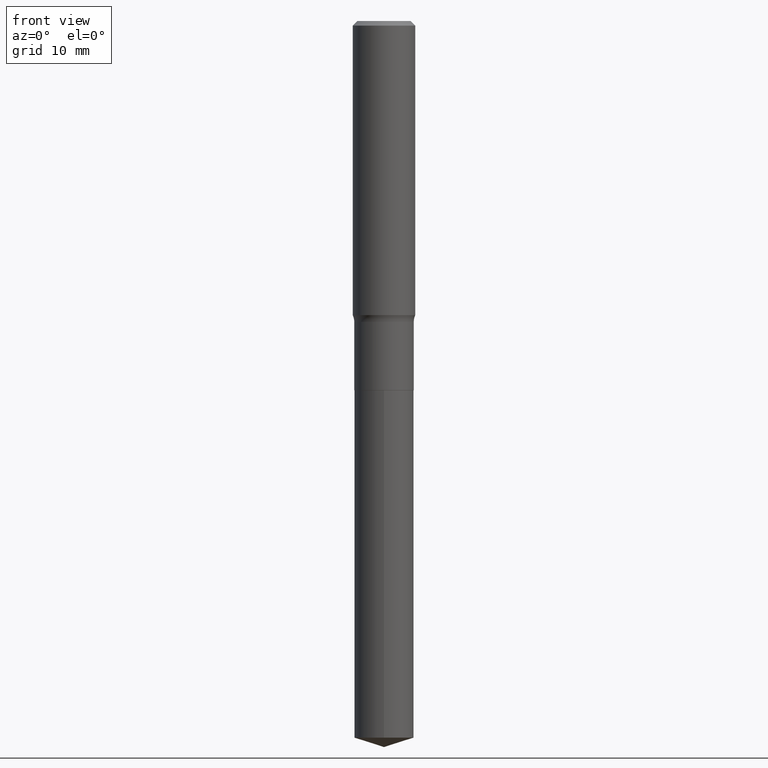
[diagram: clean part render]
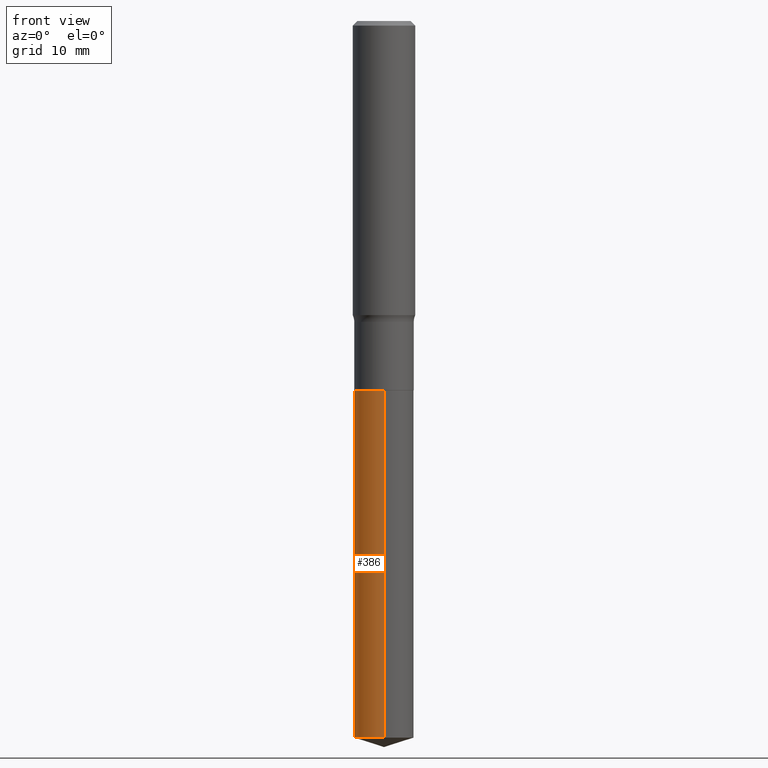
[diagram: same view with one face highlighted and labeled with its STEP entity id]
A machine part, front view. The second image highlights one B-rep face of the part: STEP entity #386.
In plain terms, the highlighted cylindrical surface (edge-blend (fillet) strip) has radius 3.7706 mm, axis along (-0, 0, 1).
Its self-contained STEP definition (entity closure, byte-faithful):
#6 = LINE ( 'NONE', #428, #115 ) ;
#23 = CYLINDRICAL_SURFACE ( 'NONE', #341, 0.1484499999999999986 ) ;
#25 = LINE ( 'NONE', #102, #387 ) ;
#62 = CARTESIAN_POINT ( 'NONE',  ( 1.054800691235956477E-15, 0.1484499999999935593, -1.843800000000000772 ) ) ;
#63 = VERTEX_POINT ( 'NONE', #317 ) ;
#66 = CIRCLE ( 'NONE', #334, 0.1484499999999999986 ) ;
#74 = DIRECTION ( 'NONE',  ( -2.445681550450447352E-29, 3.491176676946568981E-15, 1.000000000000000000 ) ) ;
#76 = ORIENTED_EDGE ( 'NONE', *, *, #112, .F. ) ;
#82 = DIRECTION ( 'NONE',  ( -2.445681550450447632E-29, 3.491176676946568981E-15, 1.000000000000000000 ) ) ;
#102 = CARTESIAN_POINT ( 'NONE',  ( -1.036620809502480931E-15, -0.1484500000000064379, -1.843799999999999661 ) ) ;
#103 = CARTESIAN_POINT ( 'NONE',  ( 4.508955384844155553E-29, -6.437593292558992940E-15, -1.843800000000000106 ) ) ;
#108 = EDGE_LOOP ( 'NONE', ( #313, #185, #195, #76 ) ) ;
#112 = EDGE_CURVE ( 'NONE', #352, #63, #300, .T. ) ;
#115 = VECTOR ( 'NONE', #82, 39.37007874015748143 ) ;
#138 = DIRECTION ( 'NONE',  ( -6.982962677686265133E-15, -1.000000000000000000, 3.680495781292372402E-15 ) ) ;
#162 = VERTEX_POINT ( 'NONE', #369 ) ;
#177 = DIRECTION ( 'NONE',  ( -6.982962677686265133E-15, -1.000000000000000000, 3.680495781292372402E-15 ) ) ;
#185 = ORIENTED_EDGE ( 'NONE', *, *, #469, .T. ) ;
#195 = ORIENTED_EDGE ( 'NONE', *, *, #277, .T. ) ;
#222 = VERTEX_POINT ( 'NONE', #434 ) ;
#275 = CARTESIAN_POINT ( 'NONE',  ( 8.750730534548190611E-29, -1.249266880669155655E-14, -3.578193894790915319 ) ) ;
#277 = EDGE_CURVE ( 'NONE', #162, #63, #25, .T. ) ;
#295 = DIRECTION ( 'NONE',  ( -2.445681550450447632E-29, 3.491176676946568981E-15, 1.000000000000000000 ) ) ;
#300 = CIRCLE ( 'NONE', #418, 0.1484499999999999986 ) ;
#313 = ORIENTED_EDGE ( 'NONE', *, *, #461, .F. ) ;
#317 = CARTESIAN_POINT ( 'NONE',  ( -1.036620809502480931E-15, -0.1484500000000064379, -1.843799999999999661 ) ) ;
#322 = CARTESIAN_POINT ( 'NONE',  ( 4.508955384844155553E-29, -6.437593292558992940E-15, -1.843800000000000106 ) ) ;
#334 = AXIS2_PLACEMENT_3D ( 'NONE', #275, #74, #388 ) ;
#341 = AXIS2_PLACEMENT_3D ( 'NONE', #103, #378, #177 ) ;
#352 = VERTEX_POINT ( 'NONE', #62 ) ;
#369 = CARTESIAN_POINT ( 'NONE',  ( -1.036620809502438924E-15, -0.1484500000000125441, -3.578193894790914875 ) ) ;
#378 = DIRECTION ( 'NONE',  ( -2.445681550450447352E-29, 3.491176676946568981E-15, 1.000000000000000000 ) ) ;
#386 = ADVANCED_FACE ( 'NONE', ( #453 ), #23, .T. ) ;
#387 = VECTOR ( 'NONE', #295, 39.37007874015748143 ) ;
#388 = DIRECTION ( 'NONE',  ( -6.982962677686265133E-15, -1.000000000000000000, 3.680495781292372402E-15 ) ) ;
#400 = DIRECTION ( 'NONE',  ( -2.445681550450447352E-29, 3.491176676946568981E-15, 1.000000000000000000 ) ) ;
#418 = AXIS2_PLACEMENT_3D ( 'NONE', #322, #400, #138 ) ;
#428 = CARTESIAN_POINT ( 'NONE',  ( 1.054800691235913681E-15, 0.1484499999999935593, -1.843800000000000772 ) ) ;
#434 = CARTESIAN_POINT ( 'NONE',  ( 1.054800691235956280E-15, 0.1484499999999875364, -3.578193894790915763 ) ) ;
#453 = FACE_OUTER_BOUND ( 'NONE', #108, .T. ) ;
#461 = EDGE_CURVE ( 'NONE', #222, #352, #6, .T. ) ;
#469 = EDGE_CURVE ( 'NONE', #222, #162, #66, .T. ) ;